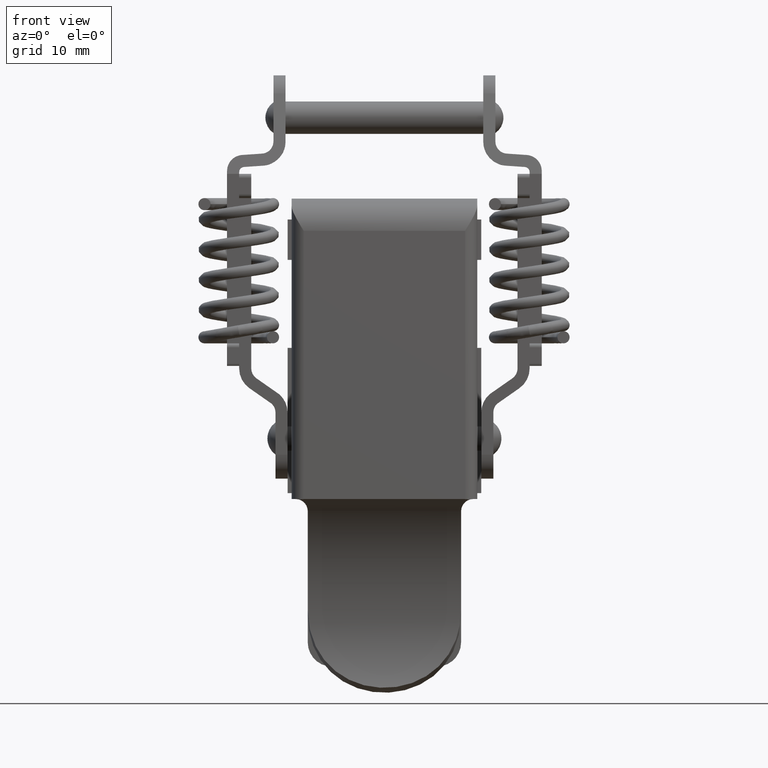
[diagram: clean part render]
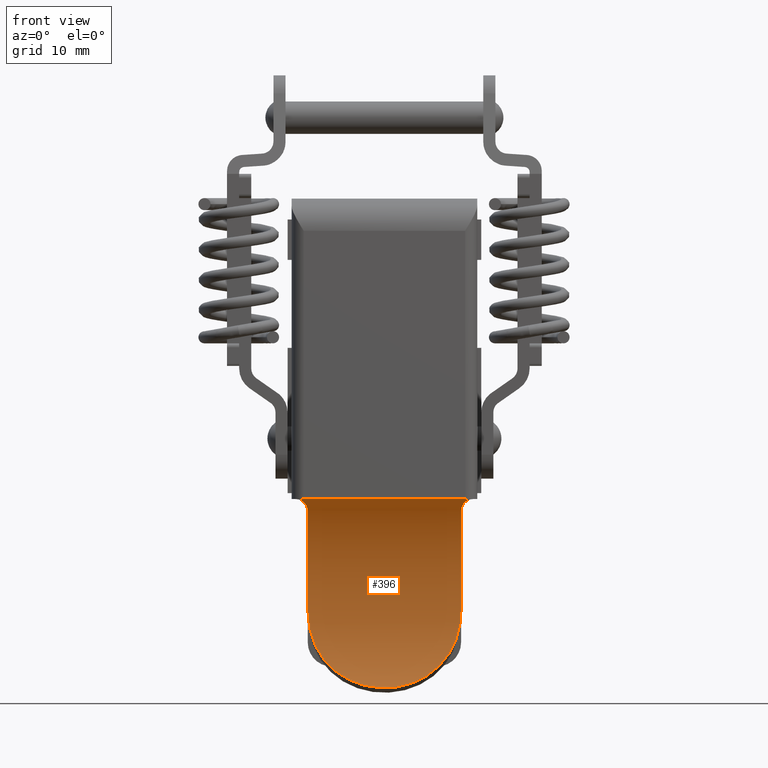
[diagram: same view with one face highlighted and labeled with its STEP entity id]
A machine part, front view. The second image highlights one B-rep face of the part: STEP entity #396.
In plain terms, the highlighted cylindrical surface (partial cylindrical patch) has radius 21.5 mm, axis along (1, 0, 0).
Its self-contained STEP definition (entity closure, byte-faithful):
#396=ADVANCED_FACE('',(#2090),#2089,.F.);
#2089=CYLINDRICAL_SURFACE('',#6912,2.15000000000E+01);
#2090=FACE_OUTER_BOUND('',#6913,.T.);
#6909=CARTESIAN_POINT('',(9.90500000000E+02,-1.53276735495E+01,-5.23125848545E+01));
#6910=DIRECTION('',(1.00000000000E+00,-0.00000000000E+00,-0.00000000000E+00));
#6911=DIRECTION('',(-0.00000000000E+00,-0.00000000000E+00,-1.00000000000E+00));
#6912=AXIS2_PLACEMENT_3D('',#6909,#6910,#6911);
#6913=EDGE_LOOP('',(#8029,#8030,#8031,#8032,#8033,#8034,#8035,#8036));
#8029=ORIENTED_EDGE('',*,*,#8704,.T.);
#8030=ORIENTED_EDGE('',*,*,#8566,.T.);
#8031=ORIENTED_EDGE('',*,*,#8700,.F.);
#8032=ORIENTED_EDGE('',*,*,#8637,.T.);
#8033=ORIENTED_EDGE('',*,*,#8642,.T.);
#8034=ORIENTED_EDGE('',*,*,#8663,.T.);
#8035=ORIENTED_EDGE('',*,*,#8707,.T.);
#8036=ORIENTED_EDGE('',*,*,#8708,.T.);
#8566=EDGE_CURVE('',#10987,#10988,#10989,.T.);
#8637=EDGE_CURVE('',#11482,#11475,#11483,.T.);
#8642=EDGE_CURVE('',#11475,#11509,#11516,.T.);
#8663=EDGE_CURVE('',#11509,#11649,#11650,.T.);
#8700=EDGE_CURVE('',#11482,#10988,#11885,.T.);
#8704=EDGE_CURVE('',#11911,#10987,#11912,.T.);
#8707=EDGE_CURVE('',#11649,#11930,#11931,.T.);
#8708=EDGE_CURVE('',#11930,#11911,#11937,.T.);
#10987=VERTEX_POINT('',#14203);
#10988=VERTEX_POINT('',#14204);
#10989=(BOUNDED_CURVE() B_SPLINE_CURVE(3,(#14205,#14206,#14207,#14208,#14209,#14210,#14211,#14212,#14213,#14214,#14215,#14216,#14217,#14218,#14219,#14220,#14221,#14222,#14223,#14224,#14225,#14226,#14227,#14228,#14229,#14230,#14231,#14232,#14233,#14234,#14235,#14236,#14237,#14238,#14239,#14240,#14241,#14242,#14243,#14244,#14245,#14246,#14247,#14248,#14249,#14250),.UNSPECIFIED.,.F.,.F.) B_SPLINE_CURVE_WITH_KNOTS((4,2,2,2,2,2,2,2,2,2,2,2,2,2,2,2,2,2,2,2,2,2,4),(-1.52162681271E-02,-1.33142515527E-02,-1.23632432655E-02,-1.14122349783E-02,-9.51021840390E-03,-8.55921011670E-03,-7.60820182950E-03,-5.70618525511E-03,-3.80416868072E-03,-2.85316039353E-03,-1.90215210633E-03,-1.35531939541E-07,1.90188104245E-03,2.85288932965E-03,3.80389761684E-03,5.70591419123E-03,6.65692247843E-03,7.60793076563E-03,9.50994734002E-03,1.14119639144E-02,1.23629722016E-02,1.33139804888E-02,1.52159970632E-02),.UNSPECIFIED.) CURVE() GEOMETRIC_REPRESENTATION_ITEM() RATIONAL_B_SPLINE_CURVE((1.00000000000E+00,1.00000000000E+00,1.00000000000E+00,1.00000000000E+00,1.00000000000E+00,1.00000000000E+00,1.00000000000E+00,1.00000000000E+00,1.00000000000E+00,1.00000000000E+00,1.00000000000E+00,1.00000000000E+00,1.00000000000E+00,1.00000000000E+00,1.00000000000E+00,1.00000000000E+00,1.00000000000E+00,1.00000000000E+00,1.00000000000E+00,1.00000000000E+00,1.00000000000E+00,1.00000000000E+00,1.00000000000E+00,1.00000000000E+00,1.00000000000E+00,1.00000000000E+00,1.00000000000E+00,1.00000000000E+00,1.00000000000E+00,1.00000000000E+00,1.00000000000E+00,1.00000000000E+00,1.00000000000E+00,1.00000000000E+00,1.00000000000E+00,1.00000000000E+00,1.00000000000E+00,1.00000000000E+00,1.00000000000E+00,1.00000000000E+00,1.00000000000E+00,1.00000000000E+00,1.00000000000E+00,1.00000000000E+00,1.00000000000E+00,1.00000000000E+00)) REPRESENTATION_ITEM('') );
#11475=VERTEX_POINT('',#14599);
#11482=VERTEX_POINT('',#14606);
#11483=(BOUNDED_CURVE() B_SPLINE_CURVE(3,(#14607,#14608,#14609,#14610,#14611,#14612,#14613,#14614,#14615,#14616,#14617,#14618),.UNSPECIFIED.,.F.,.F.) B_SPLINE_CURVE_WITH_KNOTS((4,2,2,2,2,4),(0.00000000000E+00,5.58934097975E-04,1.11786819595E-03,1.67680229392E-03,1.95626934291E-03,2.23573639190E-03),.UNSPECIFIED.) CURVE() GEOMETRIC_REPRESENTATION_ITEM() RATIONAL_B_SPLINE_CURVE((1.00000000000E+00,1.00000000000E+00,1.00000000000E+00,1.00000000000E+00,1.00000000000E+00,1.00000000000E+00,1.00000000000E+00,1.00000000000E+00,1.00000000000E+00,1.00000000000E+00,1.00000000000E+00,1.00000000000E+00)) REPRESENTATION_ITEM('') );
#11509=VERTEX_POINT('',#14640);
#11516=(BOUNDED_CURVE() B_SPLINE_CURVE(3,(#14644,#14645,#14646,#14647),.UNSPECIFIED.,.F.,.F.) B_SPLINE_CURVE_WITH_KNOTS((4,4),(1.35525271561E-20,5.13074676859E-04),.UNSPECIFIED.) CURVE() GEOMETRIC_REPRESENTATION_ITEM() RATIONAL_B_SPLINE_CURVE((1.00000000000E+00,1.00000000000E+00,1.00000000000E+00,1.00000000000E+00)) REPRESENTATION_ITEM('') );
#11649=VERTEX_POINT('',#14727);
#11650=LINE('',#14728,#14729);
#11885=CIRCLE('',#14863,2.15000000000E+01);
#11911=VERTEX_POINT('',#14878);
#11912=CIRCLE('',#14882,2.15000000000E+01);
#11930=VERTEX_POINT('',#14890);
#11931=(BOUNDED_CURVE() B_SPLINE_CURVE(3,(#14891,#14892,#14893,#14894),.UNSPECIFIED.,.F.,.F.) B_SPLINE_CURVE_WITH_KNOTS((4,4),(1.51751749308E-16,5.12868540775E-04),.UNSPECIFIED.) CURVE() GEOMETRIC_REPRESENTATION_ITEM() RATIONAL_B_SPLINE_CURVE((1.00000000000E+00,1.00000000000E+00,1.00000000000E+00,1.00000000000E+00)) REPRESENTATION_ITEM('') );
#11937=(BOUNDED_CURVE() B_SPLINE_CURVE(3,(#14895,#14896,#14897,#14898,#14899,#14900,#14901,#14902,#14903,#14904),.UNSPECIFIED.,.F.,.F.) B_SPLINE_CURVE_WITH_KNOTS((4,2,2,2,4),(5.18299863686E-04,1.07740532725E-03,1.63651079082E-03,2.19561625438E-03,2.75472171795E-03),.UNSPECIFIED.) CURVE() GEOMETRIC_REPRESENTATION_ITEM() RATIONAL_B_SPLINE_CURVE((1.00000000000E+00,1.00000000000E+00,1.00000000000E+00,1.00000000000E+00,1.00000000000E+00,1.00000000000E+00,1.00000000000E+00,1.00000000000E+00,1.00000000000E+00,1.00000000000E+00)) REPRESENTATION_ITEM('') );
#14203=CARTESIAN_POINT('',(-9.50000000000E+00,6.12931134502E+00,-5.09532470605E+01));
#14204=CARTESIAN_POINT('',(9.50000000000E+00,6.12931134502E+00,-5.09532470605E+01));
#14205=CARTESIAN_POINT('',(-9.50000000000E+00,6.12931134502E+00,-5.09532470605E+01));
#14206=CARTESIAN_POINT('',(-9.50000000000E+00,6.16993116817E+00,-5.15944261226E+01));
#14207=CARTESIAN_POINT('',(-9.44919393700E+00,6.18125582076E+00,-5.22279817820E+01));
#14208=CARTESIAN_POINT('',(-9.28955158036E+00,6.15766320848E+00,-5.31658752395E+01));
#14209=CARTESIAN_POINT('',(-9.22236533170E+00,6.14302699693E+00,-5.34764233735E+01));
#14210=CARTESIAN_POINT('',(-9.05784086212E+00,6.10070665689E+00,-5.40930409150E+01));
#14211=CARTESIAN_POINT('',(-8.96015209116E+00,6.07289482273E+00,-5.43993975049E+01));
#14212=CARTESIAN_POINT('',(-8.62678403157E+00,5.97361324685E+00,-5.52894347975E+01));
#14213=CARTESIAN_POINT('',(-8.34942773851E+00,5.88591758746E+00,-5.58517877796E+01));
#14214=CARTESIAN_POINT('',(-7.84649024979E+00,5.73236442137E+00,-5.66482396188E+01));
#14215=CARTESIAN_POINT('',(-7.66309427861E+00,5.67716240544E+00,-5.69072736640E+01));
#14216=CARTESIAN_POINT('',(-7.27152970166E+00,5.56295482947E+00,-5.74013906753E+01));
#14217=CARTESIAN_POINT('',(-7.06420609706E+00,5.50418617275E+00,-5.76357938934E+01));
#14218=CARTESIAN_POINT('',(-6.40829832323E+00,5.32615726372E+00,-5.83026606949E+01));
#14219=CARTESIAN_POINT('',(-5.92502297527E+00,5.20491807913E+00,-5.86998251335E+01));
#14220=CARTESIAN_POINT('',(-4.86917672241E+00,4.97543982187E+00,-5.93955040831E+01));
#14221=CARTESIAN_POINT('',(-4.31263892465E+00,4.87075139612E+00,-5.96838775754E+01));
#14222=CARTESIAN_POINT('',(-3.43648070202E+00,4.73829348194E+00,-6.00341487349E+01));
#14223=CARTESIAN_POINT('',(-3.13748365466E+00,4.69822396878E+00,-6.01370708067E+01));
#14224=CARTESIAN_POINT('',(-2.52522108769E+00,4.62780162124E+00,-6.03149696577E+01));
#14225=CARTESIAN_POINT('',(-2.21400274139E+00,4.59773864137E+00,-6.03892193643E+01));
#14226=CARTESIAN_POINT('',(-1.27699226264E+00,4.52526245994E+00,-6.05665072991E+01));
#14227=CARTESIAN_POINT('',(-6.43226195587E-01,4.50000359962E+00,-6.06260208994E+01));
#14228=CARTESIAN_POINT('',(6.42951247975E-01,4.49999640115E+00,-6.06260380678E+01));
#14229=CARTESIAN_POINT('',(1.27506592299E+00,4.52524102567E+00,-6.05665436597E+01));
#14230=CARTESIAN_POINT('',(2.20741325452E+00,4.59716594513E+00,-6.03906282058E+01));
#14231=CARTESIAN_POINT('',(2.51553823874E+00,4.62681871803E+00,-6.03174129518E+01));
#14232=CARTESIAN_POINT('',(3.12633293181E+00,4.69681498487E+00,-6.01406684935E+01));
#14233=CARTESIAN_POINT('',(3.42904786698E+00,4.73724597838E+00,-6.00368733063E+01));
#14234=CARTESIAN_POINT('',(4.30829145920E+00,4.86994422502E+00,-5.96861014658E+01));
#14235=CARTESIAN_POINT('',(4.86334770270E+00,4.97437652351E+00,-5.93983551138E+01));
#14236=CARTESIAN_POINT('',(5.64913402181E+00,5.14485727336E+00,-5.88820845342E+01));
#14237=CARTESIAN_POINT('',(5.90464715411E+00,5.20435399762E+00,-5.86945225691E+01));
#14238=CARTESIAN_POINT('',(6.39090262166E+00,5.32400951450E+00,-5.82960011707E+01));
#14239=CARTESIAN_POINT('',(6.62158111853E+00,5.38408896241E+00,-5.80854197568E+01));
#14240=CARTESIAN_POINT('',(7.27732260220E+00,5.56194917941E+00,-5.74198912752E+01));
#14241=CARTESIAN_POINT('',(7.66639856207E+00,5.67743065362E+00,-5.69314604423E+01));
#14242=CARTESIAN_POINT('',(8.34622199441E+00,5.88488948166E+00,-5.58587918322E+01));
#14243=CARTESIAN_POINT('',(8.62447720848E+00,5.97288657374E+00,-5.52941655013E+01));
#14244=CARTESIAN_POINT('',(8.95733276713E+00,6.07207467052E+00,-5.44076259759E+01));
#14245=CARTESIAN_POINT('',(9.05411956891E+00,6.09968050399E+00,-5.41054461499E+01));
#14246=CARTESIAN_POINT('',(9.21974732064E+00,6.14241990580E+00,-5.34877190506E+01));
#14247=CARTESIAN_POINT('',(9.28806877877E+00,6.15738466167E+00,-5.31735204185E+01));
#14248=CARTESIAN_POINT('',(9.44917421807E+00,6.18137009203E+00,-5.22302006808E+01));
#14249=CARTESIAN_POINT('',(9.50000000000E+00,6.16994824605E+00,-5.15946956950E+01));
#14250=CARTESIAN_POINT('',(9.50000000000E+00,6.12931134502E+00,-5.09532470605E+01));
#14599=CARTESIAN_POINT('',(1.04973137940E+01,8.48395884970E-02,-3.73224401330E+01));
#14606=CARTESIAN_POINT('',(9.50000000000E+00,1.34320608192E+00,-3.87357011062E+01));
#14607=CARTESIAN_POINT('',(9.50000000000E+00,1.34320608192E+00,-3.87357011062E+01));
#14608=CARTESIAN_POINT('',(9.50000000000E+00,1.22418758273E+00,-3.85895598332E+01));
#14609=CARTESIAN_POINT('',(9.52090293640E+00,1.10528049124E+00,-3.84474765540E+01));
#14610=CARTESIAN_POINT('',(9.60292000120E+00,8.67904235733E-01,-3.81709277065E+01));
#14611=CARTESIAN_POINT('',(9.66480735516E+00,7.49188921231E-01,-3.80363021450E+01));
#14612=CARTESIAN_POINT('',(9.82721325393E+00,5.26025142692E-01,-3.77888803449E+01));
#14613=CARTESIAN_POINT('',(9.92915513388E+00,4.18750696987E-01,-3.76729208632E+01));
#14614=CARTESIAN_POINT('',(1.01177307424E+01,2.74621546497E-01,-3.75199077026E+01));
#14615=CARTESIAN_POINT('',(1.01855834058E+01,2.30155967357E-01,-3.74732013815E+01));
#14616=CARTESIAN_POINT('',(1.03329473611E+01,1.49900755492E-01,-3.73895136301E+01));
#14617=CARTESIAN_POINT('',(1.04133227951E+01,1.13895848563E-01,-3.73523150941E+01));
#14618=CARTESIAN_POINT('',(1.04973137940E+01,8.48395884970E-02,-3.73224401330E+01));
#14640=CARTESIAN_POINT('',(1.00000000000E+01,2.29150032283E-13,-3.72357011062E+01));
#14644=CARTESIAN_POINT('',(1.04973137940E+01,8.48395884970E-02,-3.73224401330E+01));
#14645=CARTESIAN_POINT('',(1.03425696830E+01,3.04596183326E-02,-3.72665279307E+01));
#14646=CARTESIAN_POINT('',(1.01735113425E+01,-9.79079386672E-14,-3.72357011062E+01));
#14647=CARTESIAN_POINT('',(1.00000000000E+01,-9.79079386672E-14,-3.72357011062E+01));
#14727=CARTESIAN_POINT('',(-1.00000000000E+01,2.29150032283E-13,-3.72357011062E+01));
#14728=CARTESIAN_POINT('',(1.00000000000E+01,2.29150032283E-13,-3.72357011062E+01));
#14729=VECTOR('',#14730,2.00000000000E+01);
#14730=DIRECTION('',(-1.00000000000E+00,0.00000000000E+00,0.00000000000E+00));
#14860=CARTESIAN_POINT('',(9.50000000000E+00,-1.53276735495E+01,-5.23125848545E+01));
#14861=DIRECTION('',(-1.00000000000E+00,0.00000000000E+00,0.00000000000E+00));
#14862=DIRECTION('',(-0.00000000000E+00,-0.00000000000E+00,-1.00000000000E+00));
#14863=AXIS2_PLACEMENT_3D('',#14860,#14861,#14862);
#14878=CARTESIAN_POINT('',(-9.50000000000E+00,1.34320608192E+00,-3.87357011062E+01));
#14879=CARTESIAN_POINT('',(-9.50000000000E+00,-1.53276735495E+01,-5.23125848545E+01));
#14880=DIRECTION('',(-1.00000000000E+00,0.00000000000E+00,0.00000000000E+00));
#14881=DIRECTION('',(-0.00000000000E+00,-0.00000000000E+00,-1.00000000000E+00));
#14882=AXIS2_PLACEMENT_3D('',#14879,#14880,#14881);
#14890=CARTESIAN_POINT('',(-1.04973137940E+01,8.48395884973E-02,-3.73224401330E+01));
#14891=CARTESIAN_POINT('',(-1.00000000000E+01,-4.26325641456E-14,-3.72357011062E+01));
#14892=CARTESIAN_POINT('',(-1.01736069750E+01,-4.26325641456E-14,-3.72357011062E+01));
#14893=CARTESIAN_POINT('',(-1.03424264216E+01,3.04092736154E-02,-3.72664761674E+01));
#14894=CARTESIAN_POINT('',(-1.04973137940E+01,8.48395884972E-02,-3.73224401330E+01));
#14895=CARTESIAN_POINT('',(-1.04973137940E+01,8.48395884973E-02,-3.73224401330E+01));
#14896=CARTESIAN_POINT('',(-1.03293912678E+01,1.42931534753E-01,-3.73821689016E+01));
#14897=CARTESIAN_POINT('',(-1.01804344751E+01,2.26859051622E-01,-3.74692119847E+01));
#14898=CARTESIAN_POINT('',(-9.93136853226E+00,4.16898084588E-01,-3.76709433259E+01));
#14899=CARTESIAN_POINT('',(-9.82759617864E+00,5.25515561454E-01,-3.77883168093E+01));
#14900=CARTESIAN_POINT('',(-9.66454505037E+00,7.49532769548E-01,-3.80366819334E+01));
#14901=CARTESIAN_POINT('',(-9.60343203953E+00,8.66645739852E-01,-3.81694748316E+01));
#14902=CARTESIAN_POINT('',(-9.52084786680E+00,1.10521764870E+00,-3.84473901125E+01));
#14903=CARTESIAN_POINT('',(-9.50000000000E+00,1.22434896268E+00,-3.85897579896E+01));
#14904=CARTESIAN_POINT('',(-9.50000000000E+00,1.34320608192E+00,-3.87357011062E+01));